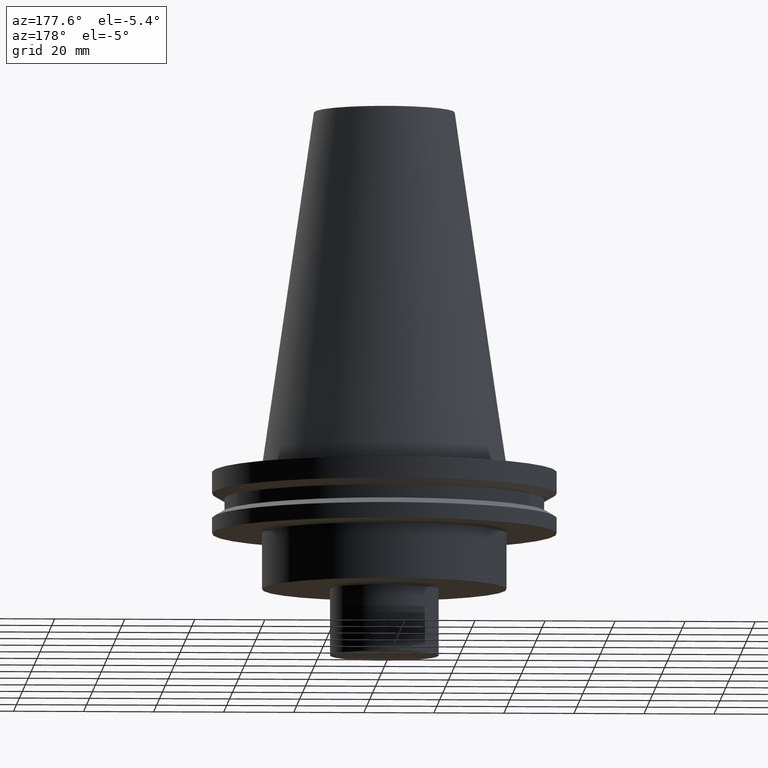
[diagram: clean part render]
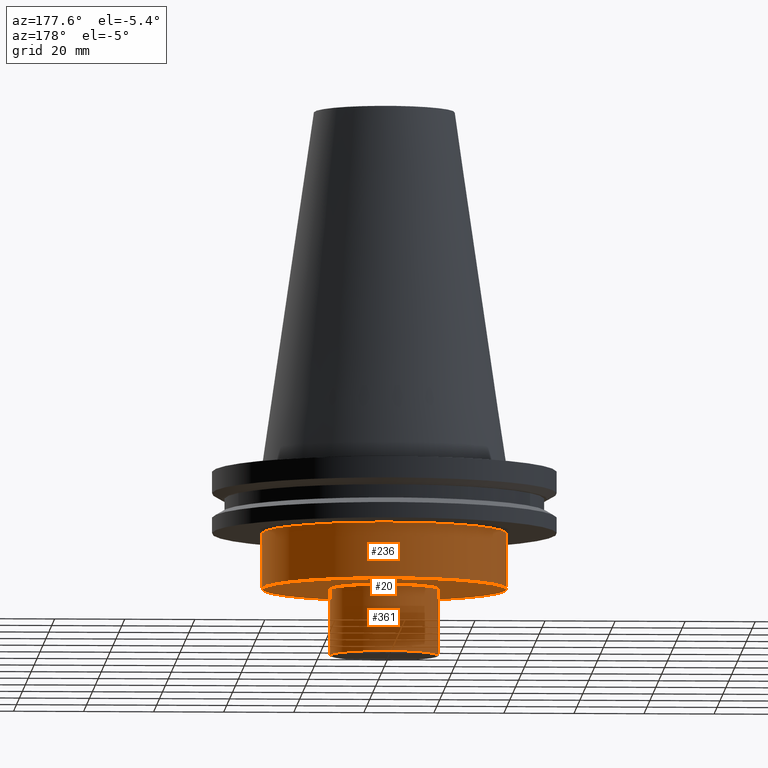
[diagram: same view with one multi-face feature highlighted, each face labeled with its STEP entity id]
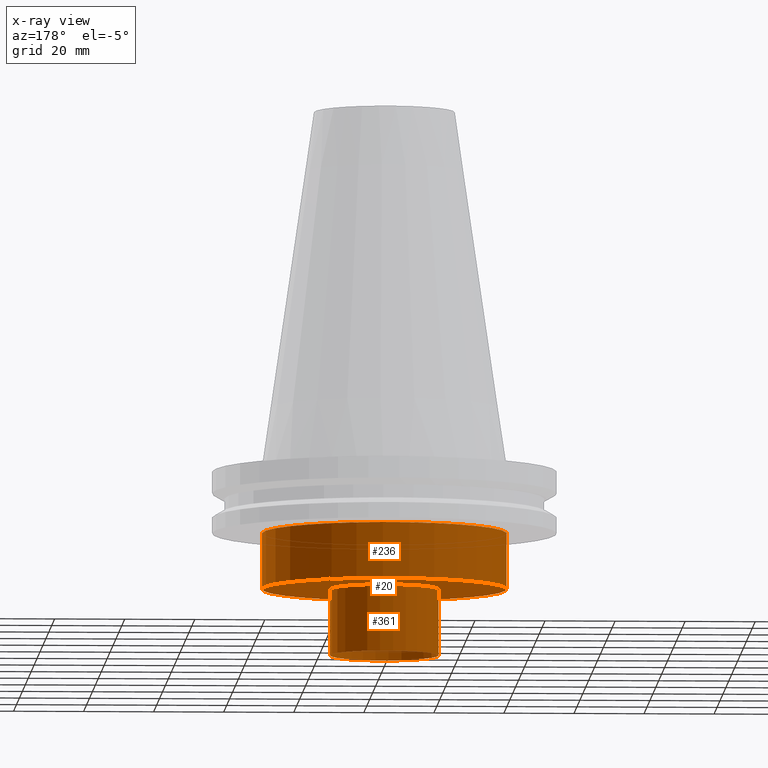
[diagram: x-ray of the same camera — body ghosted, the whole feature saturated]
A machine part, auxiliary view. The highlighted faces form ONE feature: a stepped (counterbored) hole: 2 coaxial cylindrical walls of radii 15.5 -> 34.925 mm joined by 1 annular planar shoulder face(s). The faces share edges in the B-rep.
The next image is the same camera in x-ray: the body ghosted and the whole hole feature saturated, so the bore chain is visible through the body.
Their STEP definitions:
[1] entity #236 (Cylinder):
#46 = EDGE_LOOP ( 'NONE', ( #151 ) ) ;
#73 = DIRECTION ( 'NONE',  ( -0.000000000000000000, -0.000000000000000000, 1.000000000000000000 ) ) ;
#89 = VERTEX_POINT ( 'NONE', #238 ) ;
#111 = AXIS2_PLACEMENT_3D ( 'NONE', #342, #73, #197 ) ;
#133 = DIRECTION ( 'NONE',  ( -0.000000000000000000, -0.000000000000000000, 1.000000000000000000 ) ) ;
#135 = FACE_OUTER_BOUND ( 'NONE', #46, .T. ) ;
#141 = EDGE_LOOP ( 'NONE', ( #385 ) ) ;
#151 = ORIENTED_EDGE ( 'NONE', *, *, #205, .T. ) ;
#152 = AXIS2_PLACEMENT_3D ( 'NONE', #306, #226, #253 ) ;
#180 = EDGE_CURVE ( 'NONE', #89, #89, #352, .T. ) ;
#197 = DIRECTION ( 'NONE',  ( 1.000000000000000000, 0.000000000000000000, 0.000000000000000000 ) ) ;
#199 = CYLINDRICAL_SURFACE ( 'NONE', #111, 34.92499999999999716 ) ;
#204 = CIRCLE ( 'NONE', #307, 34.92499999999999716 ) ;
#205 = EDGE_CURVE ( 'NONE', #297, #297, #204, .T. ) ;
#226 = DIRECTION ( 'NONE',  ( -0.000000000000000000, -0.000000000000000000, 1.000000000000000000 ) ) ;
#228 = FACE_OUTER_BOUND ( 'NONE', #141, .T. ) ;
#236 = ADVANCED_FACE ( 'NONE', ( #228, #135 ), #199, .T. ) ;
#238 = CARTESIAN_POINT ( 'NONE',  ( 34.92499999999999716, 0.000000000000000000, -19.04999999999999716 ) ) ;
#253 = DIRECTION ( 'NONE',  ( 1.000000000000000000, 0.000000000000000000, 0.000000000000000000 ) ) ;
#275 = CARTESIAN_POINT ( 'NONE',  ( 0.000000000000000000, 0.000000000000000000, -35.00000000000000000 ) ) ;
#297 = VERTEX_POINT ( 'NONE', #351 ) ;
#306 = CARTESIAN_POINT ( 'NONE',  ( 0.000000000000000000, 0.000000000000000000, -19.04999999999999716 ) ) ;
#307 = AXIS2_PLACEMENT_3D ( 'NONE', #275, #133, #378 ) ;
#342 = CARTESIAN_POINT ( 'NONE',  ( 0.000000000000000000, 0.000000000000000000, 101.5999999999999943 ) ) ;
#351 = CARTESIAN_POINT ( 'NONE',  ( 34.92499999999999716, 0.000000000000000000, -35.00000000000000000 ) ) ;
#352 = CIRCLE ( 'NONE', #152, 34.92499999999999716 ) ;
#378 = DIRECTION ( 'NONE',  ( 1.000000000000000000, 0.000000000000000000, 0.000000000000000000 ) ) ;
#385 = ORIENTED_EDGE ( 'NONE', *, *, #180, .F. ) ;
[2] entity #361 (Cylinder):
#22 = CARTESIAN_POINT ( 'NONE',  ( 15.50000000000000000, 0.000000000000000000, -53.99999999999999289 ) ) ;
#47 = DIRECTION ( 'NONE',  ( -0.000000000000000000, -0.000000000000000000, 1.000000000000000000 ) ) ;
#51 = CYLINDRICAL_SURFACE ( 'NONE', #110, 15.50000000000000000 ) ;
#54 = CARTESIAN_POINT ( 'NONE',  ( 15.50000000000000000, 0.000000000000000000, -35.00000000000000000 ) ) ;
#56 = FACE_OUTER_BOUND ( 'NONE', #263, .T. ) ;
#59 = AXIS2_PLACEMENT_3D ( 'NONE', #201, #289, #314 ) ;
#72 = CIRCLE ( 'NONE', #292, 15.50000000000000000 ) ;
#75 = CARTESIAN_POINT ( 'NONE',  ( 0.000000000000000000, 0.000000000000000000, -53.99999999999999289 ) ) ;
#106 = EDGE_LOOP ( 'NONE', ( #327 ) ) ;
#110 = AXIS2_PLACEMENT_3D ( 'NONE', #175, #47, #391 ) ;
#113 = ORIENTED_EDGE ( 'NONE', *, *, #270, .F. ) ;
#168 = DIRECTION ( 'NONE',  ( -0.000000000000000000, -0.000000000000000000, 1.000000000000000000 ) ) ;
#175 = CARTESIAN_POINT ( 'NONE',  ( 0.000000000000000000, 0.000000000000000000, 0.000000000000000000 ) ) ;
#181 = VERTEX_POINT ( 'NONE', #22 ) ;
#201 = CARTESIAN_POINT ( 'NONE',  ( 0.000000000000000000, 0.000000000000000000, -35.00000000000000000 ) ) ;
#246 = CIRCLE ( 'NONE', #59, 15.50000000000000000 ) ;
#263 = EDGE_LOOP ( 'NONE', ( #113 ) ) ;
#270 = EDGE_CURVE ( 'NONE', #328, #328, #246, .T. ) ;
#276 = EDGE_CURVE ( 'NONE', #181, #181, #72, .T. ) ;
#289 = DIRECTION ( 'NONE',  ( -0.000000000000000000, -0.000000000000000000, 1.000000000000000000 ) ) ;
#292 = AXIS2_PLACEMENT_3D ( 'NONE', #75, #168, #313 ) ;
#313 = DIRECTION ( 'NONE',  ( 1.000000000000000000, 0.000000000000000000, 0.000000000000000000 ) ) ;
#314 = DIRECTION ( 'NONE',  ( 1.000000000000000000, 0.000000000000000000, 0.000000000000000000 ) ) ;
#322 = FACE_OUTER_BOUND ( 'NONE', #106, .T. ) ;
#327 = ORIENTED_EDGE ( 'NONE', *, *, #276, .T. ) ;
#328 = VERTEX_POINT ( 'NONE', #54 ) ;
#361 = ADVANCED_FACE ( 'NONE', ( #56, #322 ), #51, .T. ) ;
#391 = DIRECTION ( 'NONE',  ( 1.000000000000000000, 0.000000000000000000, 0.000000000000000000 ) ) ;
[3] entity #20 (Plane):
#20 = ADVANCED_FACE ( 'NONE', ( #298, #52 ), #387, .F. ) ;
#50 = AXIS2_PLACEMENT_3D ( 'NONE', #179, #122, #149 ) ;
#52 = FACE_OUTER_BOUND ( 'NONE', #239, .T. ) ;
#54 = CARTESIAN_POINT ( 'NONE',  ( 15.50000000000000000, 0.000000000000000000, -35.00000000000000000 ) ) ;
#59 = AXIS2_PLACEMENT_3D ( 'NONE', #201, #289, #314 ) ;
#122 = DIRECTION ( 'NONE',  ( 0.000000000000000000, -0.000000000000000000, 1.000000000000000000 ) ) ;
#133 = DIRECTION ( 'NONE',  ( -0.000000000000000000, -0.000000000000000000, 1.000000000000000000 ) ) ;
#139 = ORIENTED_EDGE ( 'NONE', *, *, #205, .F. ) ;
#149 = DIRECTION ( 'NONE',  ( 1.000000000000000000, 0.000000000000000000, 0.000000000000000000 ) ) ;
#179 = CARTESIAN_POINT ( 'NONE',  ( 0.000000000000000000, 34.92499999999999716, -35.00000000000000000 ) ) ;
#201 = CARTESIAN_POINT ( 'NONE',  ( 0.000000000000000000, 0.000000000000000000, -35.00000000000000000 ) ) ;
#204 = CIRCLE ( 'NONE', #307, 34.92499999999999716 ) ;
#205 = EDGE_CURVE ( 'NONE', #297, #297, #204, .T. ) ;
#239 = EDGE_LOOP ( 'NONE', ( #139 ) ) ;
#246 = CIRCLE ( 'NONE', #59, 15.50000000000000000 ) ;
#270 = EDGE_CURVE ( 'NONE', #328, #328, #246, .T. ) ;
#275 = CARTESIAN_POINT ( 'NONE',  ( 0.000000000000000000, 0.000000000000000000, -35.00000000000000000 ) ) ;
#289 = DIRECTION ( 'NONE',  ( -0.000000000000000000, -0.000000000000000000, 1.000000000000000000 ) ) ;
#297 = VERTEX_POINT ( 'NONE', #351 ) ;
#298 = FACE_BOUND ( 'NONE', #323, .T. ) ;
#307 = AXIS2_PLACEMENT_3D ( 'NONE', #275, #133, #378 ) ;
#314 = DIRECTION ( 'NONE',  ( 1.000000000000000000, 0.000000000000000000, 0.000000000000000000 ) ) ;
#323 = EDGE_LOOP ( 'NONE', ( #383 ) ) ;
#328 = VERTEX_POINT ( 'NONE', #54 ) ;
#351 = CARTESIAN_POINT ( 'NONE',  ( 34.92499999999999716, 0.000000000000000000, -35.00000000000000000 ) ) ;
#378 = DIRECTION ( 'NONE',  ( 1.000000000000000000, 0.000000000000000000, 0.000000000000000000 ) ) ;
#383 = ORIENTED_EDGE ( 'NONE', *, *, #270, .T. ) ;
#387 = PLANE ( 'NONE',  #50 ) ;